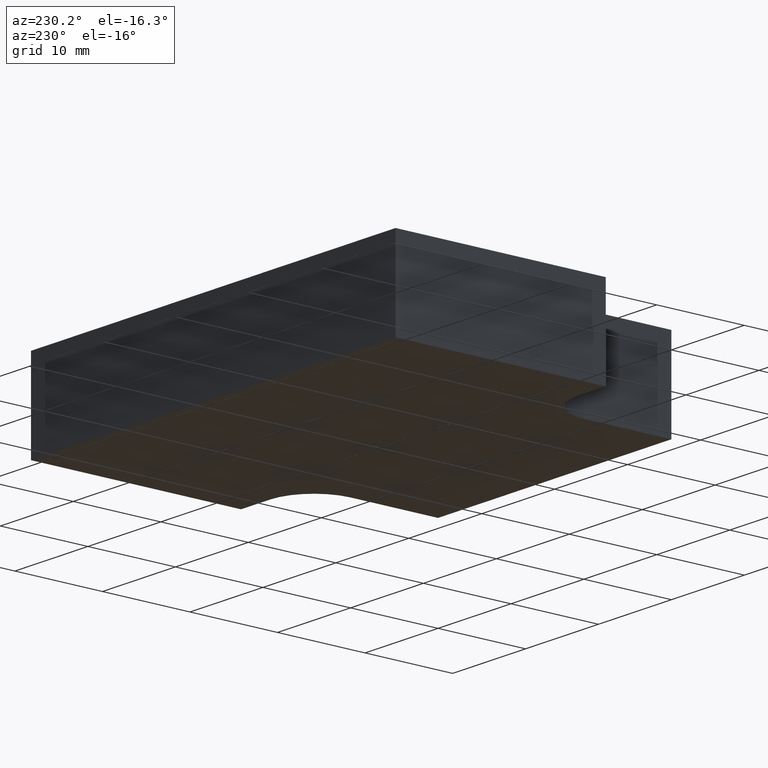
[diagram: clean part render]
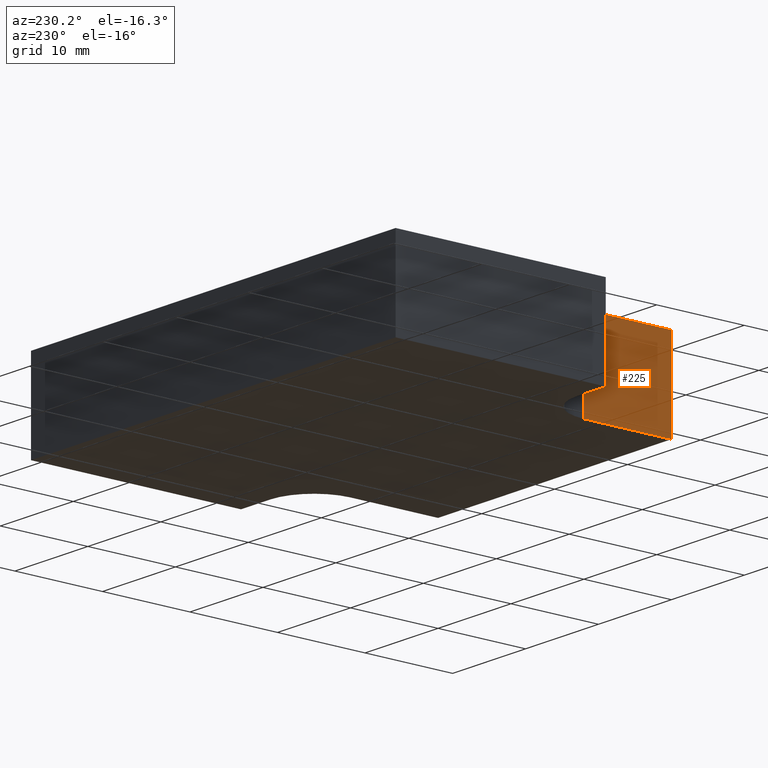
[diagram: same view with one face highlighted and labeled with its STEP entity id]
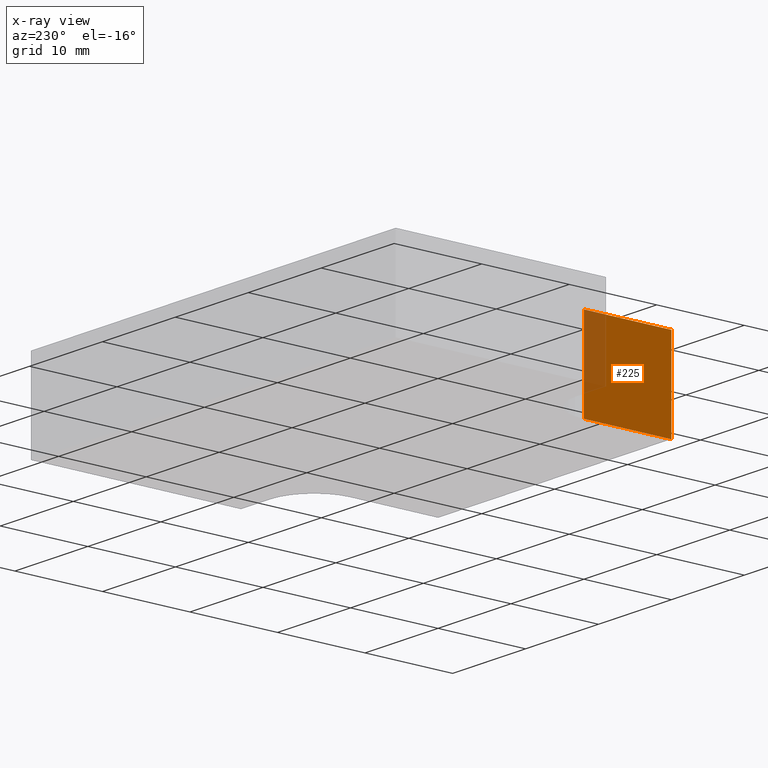
[diagram: x-ray of the same camera — body ghosted, the highlighted face saturated]
A machine part, auxiliary view. The second image highlights one B-rep face of the part: STEP entity #225.
The next image is the same camera in x-ray: the body ghosted, the highlighted face saturated — about 18% of this face is hidden behind the body in this view.
In plain terms, the highlighted planar face has unit normal (-1, -0, 0).
Its self-contained STEP definition (entity closure, byte-faithful):
#25=FACE_OUTER_BOUND('',#37,.T.);
#37=EDGE_LOOP('',(#182,#183,#184,#185));
#52=LINE('',#347,#78);
#65=LINE('',#376,#91);
#66=LINE('',#379,#92);
#67=LINE('',#380,#93);
#78=VECTOR('',#281,10.);
#91=VECTOR('',#310,10.);
#92=VECTOR('',#313,10.);
#93=VECTOR('',#314,10.);
#105=VERTEX_POINT('',#344);
#106=VERTEX_POINT('',#346);
#114=VERTEX_POINT('',#374);
#115=VERTEX_POINT('',#378);
#125=EDGE_CURVE('',#106,#105,#52,.T.);
#140=EDGE_CURVE('',#114,#105,#65,.T.);
#141=EDGE_CURVE('',#114,#115,#66,.T.);
#142=EDGE_CURVE('',#115,#106,#67,.T.);
#182=ORIENTED_EDGE('',*,*,#141,.T.);
#183=ORIENTED_EDGE('',*,*,#142,.T.);
#184=ORIENTED_EDGE('',*,*,#125,.T.);
#185=ORIENTED_EDGE('',*,*,#140,.F.);
#214=PLANE('',#263);
#225=ADVANCED_FACE('',(#25),#214,.T.);
#263=AXIS2_PLACEMENT_3D('',#377,#311,#312);
#281=DIRECTION('',(2.22044604925031E-16,-1.,0.));
#310=DIRECTION('',(0.,0.,-1.));
#311=DIRECTION('center_axis',(-1.,-2.22044604925031E-16,0.));
#312=DIRECTION('ref_axis',(0.,0.,1.));
#313=DIRECTION('',(-2.22044604925031E-16,1.,0.));
#314=DIRECTION('',(0.,0.,-1.));
#344=CARTESIAN_POINT('',(-16.,-9.97995764079477E-16,-5.));
#346=CARTESIAN_POINT('',(-16.,10.,-5.));
#347=CARTESIAN_POINT('',(-16.,-9.97995764079477E-16,-5.));
#374=CARTESIAN_POINT('',(-16.,-9.97995764079477E-16,5.));
#376=CARTESIAN_POINT('',(-16.,-9.97995764079477E-16,0.));
#377=CARTESIAN_POINT('Origin',(-16.,-9.97995764079477E-16,0.));
#378=CARTESIAN_POINT('',(-16.,10.,5.));
#379=CARTESIAN_POINT('',(-16.,-9.97995764079477E-16,5.));
#380=CARTESIAN_POINT('',(-16.,10.,0.));